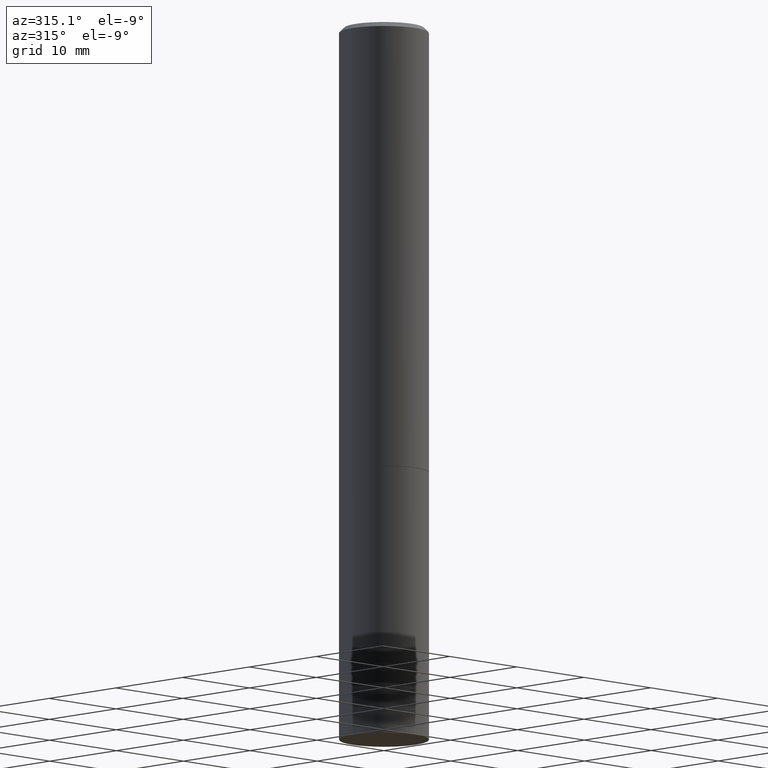
[diagram: clean part render]
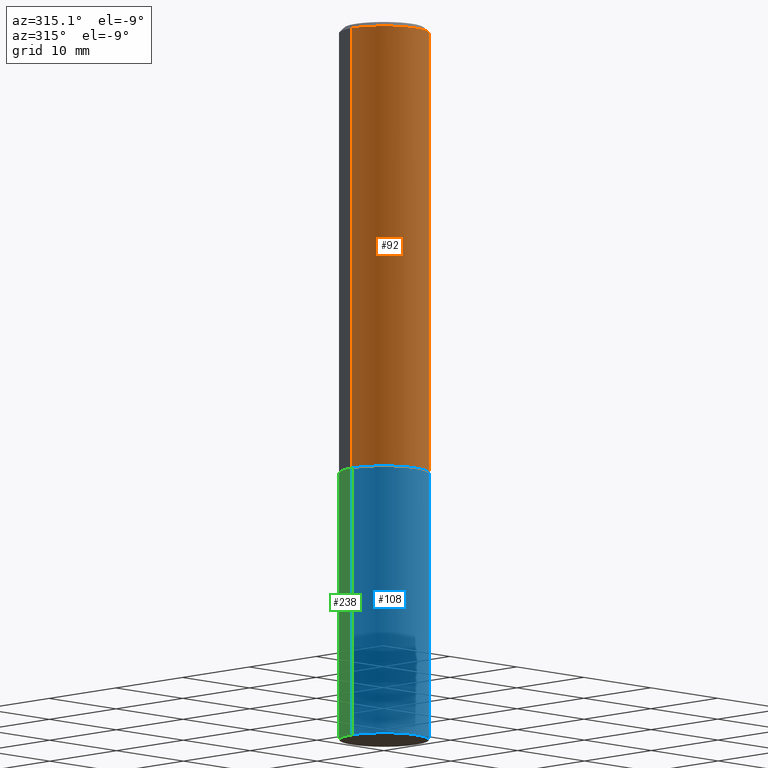
[diagram: same view with three faces highlighted in distinct colors, each labeled with its STEP entity id]
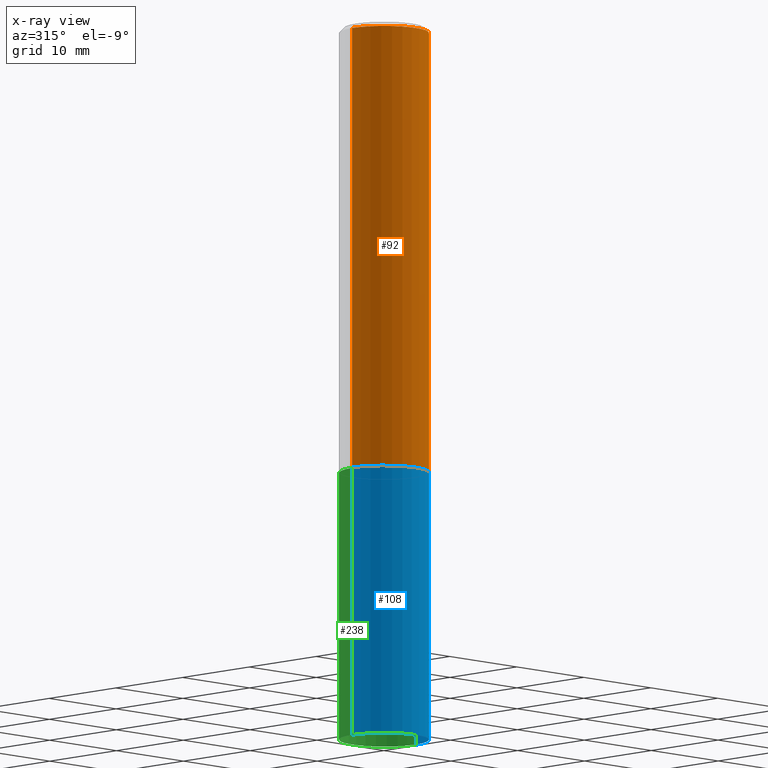
[diagram: x-ray of the same camera — body ghosted, the three highlighted faces saturated]
A machine part, auxiliary view with three faces highlighted in distinct colors.
The next image is the same camera in x-ray (body ghosted, the three faces saturated) — at least one of them is partly hidden behind the body in this view.
Their STEP definitions:

[orange] entity #92 — the highlighted cylindrical surface (partial cylindrical patch) has radius 4.7625 mm, axis along (-0, 0, 1).
#1 = LINE ( 'NONE', #167, #325 ) ;
#13 = ORIENTED_EDGE ( 'NONE', *, *, #120, .F. ) ;
#27 = VERTEX_POINT ( 'NONE', #213 ) ;
#28 = DIRECTION ( 'NONE',  ( 1.000000000000000000, -6.982962677686264344E-15, 0.000000000000000000 ) ) ;
#77 = DIRECTION ( 'NONE',  ( -2.445468806185136597E-29, 3.491481338843145583E-15, 1.000000000000000000 ) ) ;
#83 = CARTESIAN_POINT ( 'NONE',  ( -0.1874999999999998335, 1.239475875289310724E-15, -0.02000000000000007674 ) ) ;
#92 = ADVANCED_FACE ( 'NONE', ( #158 ), #215, .T. ) ;
#105 = CIRCLE ( 'NONE', #126, 0.1874999999999998335 ) ;
#120 = EDGE_CURVE ( 'NONE', #27, #240, #1, .T. ) ;
#126 = AXIS2_PLACEMENT_3D ( 'NONE', #201, #169, #262 ) ;
#131 = EDGE_LOOP ( 'NONE', ( #13, #242, #202, #293 ) ) ;
#135 = DIRECTION ( 'NONE',  ( -2.445468806185136877E-29, 3.491481338843145188E-15, 1.000000000000000000 ) ) ;
#139 = LINE ( 'NONE', #193, #233 ) ;
#158 = FACE_OUTER_BOUND ( 'NONE', #131, .T. ) ;
#166 = DIRECTION ( 'NONE',  ( -2.445468806185136877E-29, 3.491481338843145188E-15, 1.000000000000000000 ) ) ;
#167 = CARTESIAN_POINT ( 'NONE',  ( -0.1874999999999999722, 1.332267629550187651E-15, -9.223003294227946589E-30 ) ) ;
#169 = DIRECTION ( 'NONE',  ( -2.445468806185136597E-29, 3.491481338843145583E-15, 1.000000000000000000 ) ) ;
#186 = DIRECTION ( 'NONE',  ( 1.000000000000000000, -6.982962677686266711E-15, 4.876176775795935793E-29 ) ) ;
#193 = CARTESIAN_POINT ( 'NONE',  ( 0.1874999999999999722, -1.309305502066174811E-15, 9.142831454617378210E-30 ) ) ;
#197 = DIRECTION ( 'NONE',  ( -2.445468806185136597E-29, 3.491481338843145583E-15, 1.000000000000000000 ) ) ;
#201 = CARTESIAN_POINT ( 'NONE',  ( 4.890937612370292426E-31, -6.982962677686317493E-17, -0.02000000000000007674 ) ) ;
#202 = ORIENTED_EDGE ( 'NONE', *, *, #210, .T. ) ;
#205 = VERTEX_POINT ( 'NONE', #343 ) ;
#210 = EDGE_CURVE ( 'NONE', #205, #229, #139, .T. ) ;
#213 = CARTESIAN_POINT ( 'NONE',  ( -0.1875000000000000555, -1.974165198334270073E-15, -1.874000000000000110 ) ) ;
#215 = CYLINDRICAL_SURFACE ( 'NONE', #264, 0.1874999999999999722 ) ;
#220 = AXIS2_PLACEMENT_3D ( 'NONE', #312, #197, #28 ) ;
#229 = VERTEX_POINT ( 'NONE', #282 ) ;
#233 = VECTOR ( 'NONE', #135, 39.37007874015748143 ) ;
#240 = VERTEX_POINT ( 'NONE', #83 ) ;
#242 = ORIENTED_EDGE ( 'NONE', *, *, #250, .T. ) ;
#250 = EDGE_CURVE ( 'NONE', #27, #205, #286, .T. ) ;
#262 = DIRECTION ( 'NONE',  ( 1.000000000000000000, -6.982962677686266711E-15, 0.000000000000000000 ) ) ;
#264 = AXIS2_PLACEMENT_3D ( 'NONE', #331, #77, #186 ) ;
#282 = CARTESIAN_POINT ( 'NONE',  ( 0.1874999999999998335, -1.356173001359024283E-15, -0.02000000000000007674 ) ) ;
#286 = CIRCLE ( 'NONE', #220, 0.1875000000000000833 ) ;
#293 = ORIENTED_EDGE ( 'NONE', *, *, #352, .F. ) ;
#312 = CARTESIAN_POINT ( 'NONE',  ( 4.582808542790945516E-29, -6.543036028992054911E-15, -1.874000000000000110 ) ) ;
#325 = VECTOR ( 'NONE', #166, 39.37007874015748143 ) ;
#331 = CARTESIAN_POINT ( 'NONE',  ( 0.000000000000000000, 0.000000000000000000, 0.000000000000000000 ) ) ;
#343 = CARTESIAN_POINT ( 'NONE',  ( 0.1875000000000000833, -7.852341531058230708E-15, -1.874000000000000110 ) ) ;
#352 = EDGE_CURVE ( 'NONE', #240, #229, #105, .T. ) ;

[blue] entity #108 — the highlighted cylindrical surface (partial cylindrical patch) has radius 4.7625 mm, axis along (-0, 0, 1).
#8 = CARTESIAN_POINT ( 'NONE',  ( 4.585254011597131119E-29, -6.546527510330898707E-15, -1.875000000000000000 ) ) ;
#11 = CARTESIAN_POINT ( 'NONE',  ( 0.1875000000000000278, -1.309305502066175008E-15, 9.142831454617381013E-30 ) ) ;
#22 = DIRECTION ( 'NONE',  ( 1.000000000000000000, -6.982962677686261189E-15, 0.000000000000000000 ) ) ;
#30 = EDGE_CURVE ( 'NONE', #175, #191, #154, .T. ) ;
#44 = ORIENTED_EDGE ( 'NONE', *, *, #281, .T. ) ;
#65 = CARTESIAN_POINT ( 'NONE',  ( 0.1875000000000000278, -7.855833012397073715E-15, -1.875000000000000000 ) ) ;
#79 = CYLINDRICAL_SURFACE ( 'NONE', #85, 0.1875000000000000278 ) ;
#82 = DIRECTION ( 'NONE',  ( -2.445468806185136597E-29, 3.491481338843145583E-15, 1.000000000000000000 ) ) ;
#85 = AXIS2_PLACEMENT_3D ( 'NONE', #160, #82, #225 ) ;
#87 = EDGE_CURVE ( 'NONE', #175, #321, #155, .T. ) ;
#104 = FACE_OUTER_BOUND ( 'NONE', #323, .T. ) ;
#108 = ADVANCED_FACE ( 'NONE', ( #104 ), #79, .T. ) ;
#110 = DIRECTION ( 'NONE',  ( -2.445468806185136597E-29, 3.491481338843145583E-15, 1.000000000000000000 ) ) ;
#117 = EDGE_CURVE ( 'NONE', #191, #261, #179, .T. ) ;
#118 = AXIS2_PLACEMENT_3D ( 'NONE', #8, #110, #134 ) ;
#122 = CARTESIAN_POINT ( 'NONE',  ( 0.1875000000000000278, -1.178374951859561136E-14, -3.000000000000000444 ) ) ;
#133 = VECTOR ( 'NONE', #248, 39.37007874015748143 ) ;
#134 = DIRECTION ( 'NONE',  ( 1.000000000000000000, -6.982962677686266711E-15, 0.000000000000000000 ) ) ;
#154 = LINE ( 'NONE', #244, #133 ) ;
#155 = CIRCLE ( 'NONE', #187, 0.1875000000000000278 ) ;
#160 = CARTESIAN_POINT ( 'NONE',  ( 0.000000000000000000, 0.000000000000000000, 0.000000000000000000 ) ) ;
#175 = VERTEX_POINT ( 'NONE', #284 ) ;
#179 = CIRCLE ( 'NONE', #118, 0.1875000000000000278 ) ;
#184 = DIRECTION ( 'NONE',  ( -2.445468806185136597E-29, 3.491481338843145583E-15, 1.000000000000000000 ) ) ;
#187 = AXIS2_PLACEMENT_3D ( 'NONE', #329, #184, #22 ) ;
#191 = VERTEX_POINT ( 'NONE', #342 ) ;
#207 = LINE ( 'NONE', #11, #303 ) ;
#225 = DIRECTION ( 'NONE',  ( 1.000000000000000000, -6.982962677686265922E-15, 4.876176775795935793E-29 ) ) ;
#244 = CARTESIAN_POINT ( 'NONE',  ( -0.1875000000000000278, 1.332267629550188046E-15, -9.223003294227947991E-30 ) ) ;
#248 = DIRECTION ( 'NONE',  ( -2.445468806185136877E-29, 3.491481338843145188E-15, 1.000000000000000000 ) ) ;
#261 = VERTEX_POINT ( 'NONE', #65 ) ;
#281 = EDGE_CURVE ( 'NONE', #321, #261, #207, .T. ) ;
#284 = CARTESIAN_POINT ( 'NONE',  ( -0.1875000000000000278, -7.178218133879978893E-15, -3.000000000000000444 ) ) ;
#297 = ORIENTED_EDGE ( 'NONE', *, *, #117, .F. ) ;
#303 = VECTOR ( 'NONE', #317, 39.37007874015748143 ) ;
#317 = DIRECTION ( 'NONE',  ( -2.445468806185136877E-29, 3.491481338843145188E-15, 1.000000000000000000 ) ) ;
#321 = VERTEX_POINT ( 'NONE', #122 ) ;
#323 = EDGE_LOOP ( 'NONE', ( #324, #366, #44, #297 ) ) ;
#324 = ORIENTED_EDGE ( 'NONE', *, *, #30, .F. ) ;
#329 = CARTESIAN_POINT ( 'NONE',  ( 7.336406418555409790E-29, -1.047444401652943635E-14, -3.000000000000000444 ) ) ;
#342 = CARTESIAN_POINT ( 'NONE',  ( -0.1875000000000000278, -7.178218133879978893E-15, -1.875000000000000000 ) ) ;
#366 = ORIENTED_EDGE ( 'NONE', *, *, #87, .T. ) ;

[green] entity #238 — the highlighted cylindrical surface (partial cylindrical patch) has radius 4.7625 mm, axis along (-0, 0, 1).
#2 = DIRECTION ( 'NONE',  ( 1.000000000000000000, -6.982962677686265922E-15, 4.876176775795935793E-29 ) ) ;
#4 = FACE_OUTER_BOUND ( 'NONE', #172, .T. ) ;
#11 = CARTESIAN_POINT ( 'NONE',  ( 0.1875000000000000278, -1.309305502066175008E-15, 9.142831454617381013E-30 ) ) ;
#30 = EDGE_CURVE ( 'NONE', #175, #191, #154, .T. ) ;
#40 = DIRECTION ( 'NONE',  ( 1.000000000000000000, -6.982962677686261189E-15, 0.000000000000000000 ) ) ;
#52 = CIRCLE ( 'NONE', #265, 0.1875000000000000278 ) ;
#59 = CARTESIAN_POINT ( 'NONE',  ( 4.585254011597131119E-29, -6.546527510330898707E-15, -1.875000000000000000 ) ) ;
#62 = DIRECTION ( 'NONE',  ( -2.445468806185136597E-29, 3.491481338843145583E-15, 1.000000000000000000 ) ) ;
#65 = CARTESIAN_POINT ( 'NONE',  ( 0.1875000000000000278, -7.855833012397073715E-15, -1.875000000000000000 ) ) ;
#94 = ORIENTED_EDGE ( 'NONE', *, *, #299, .T. ) ;
#111 = CYLINDRICAL_SURFACE ( 'NONE', #302, 0.1875000000000000278 ) ;
#121 = CIRCLE ( 'NONE', #188, 0.1875000000000000278 ) ;
#122 = CARTESIAN_POINT ( 'NONE',  ( 0.1875000000000000278, -1.178374951859561136E-14, -3.000000000000000444 ) ) ;
#125 = ORIENTED_EDGE ( 'NONE', *, *, #281, .F. ) ;
#133 = VECTOR ( 'NONE', #248, 39.37007874015748143 ) ;
#154 = LINE ( 'NONE', #244, #133 ) ;
#172 = EDGE_LOOP ( 'NONE', ( #94, #333, #295, #125 ) ) ;
#175 = VERTEX_POINT ( 'NONE', #284 ) ;
#188 = AXIS2_PLACEMENT_3D ( 'NONE', #59, #287, #258 ) ;
#191 = VERTEX_POINT ( 'NONE', #342 ) ;
#206 = DIRECTION ( 'NONE',  ( -2.445468806185136597E-29, 3.491481338843145583E-15, 1.000000000000000000 ) ) ;
#207 = LINE ( 'NONE', #11, #303 ) ;
#238 = ADVANCED_FACE ( 'NONE', ( #4 ), #111, .T. ) ;
#244 = CARTESIAN_POINT ( 'NONE',  ( -0.1875000000000000278, 1.332267629550188046E-15, -9.223003294227947991E-30 ) ) ;
#248 = DIRECTION ( 'NONE',  ( -2.445468806185136877E-29, 3.491481338843145188E-15, 1.000000000000000000 ) ) ;
#257 = EDGE_CURVE ( 'NONE', #261, #191, #121, .T. ) ;
#258 = DIRECTION ( 'NONE',  ( 1.000000000000000000, -6.982962677686266711E-15, 0.000000000000000000 ) ) ;
#261 = VERTEX_POINT ( 'NONE', #65 ) ;
#265 = AXIS2_PLACEMENT_3D ( 'NONE', #294, #206, #40 ) ;
#281 = EDGE_CURVE ( 'NONE', #321, #261, #207, .T. ) ;
#284 = CARTESIAN_POINT ( 'NONE',  ( -0.1875000000000000278, -7.178218133879978893E-15, -3.000000000000000444 ) ) ;
#287 = DIRECTION ( 'NONE',  ( -2.445468806185136597E-29, 3.491481338843145583E-15, 1.000000000000000000 ) ) ;
#294 = CARTESIAN_POINT ( 'NONE',  ( 7.336406418555409790E-29, -1.047444401652943635E-14, -3.000000000000000444 ) ) ;
#295 = ORIENTED_EDGE ( 'NONE', *, *, #257, .F. ) ;
#299 = EDGE_CURVE ( 'NONE', #321, #175, #52, .T. ) ;
#302 = AXIS2_PLACEMENT_3D ( 'NONE', #315, #62, #2 ) ;
#303 = VECTOR ( 'NONE', #317, 39.37007874015748143 ) ;
#315 = CARTESIAN_POINT ( 'NONE',  ( 0.000000000000000000, 0.000000000000000000, 0.000000000000000000 ) ) ;
#317 = DIRECTION ( 'NONE',  ( -2.445468806185136877E-29, 3.491481338843145188E-15, 1.000000000000000000 ) ) ;
#321 = VERTEX_POINT ( 'NONE', #122 ) ;
#333 = ORIENTED_EDGE ( 'NONE', *, *, #30, .T. ) ;
#342 = CARTESIAN_POINT ( 'NONE',  ( -0.1875000000000000278, -7.178218133879978893E-15, -1.875000000000000000 ) ) ;